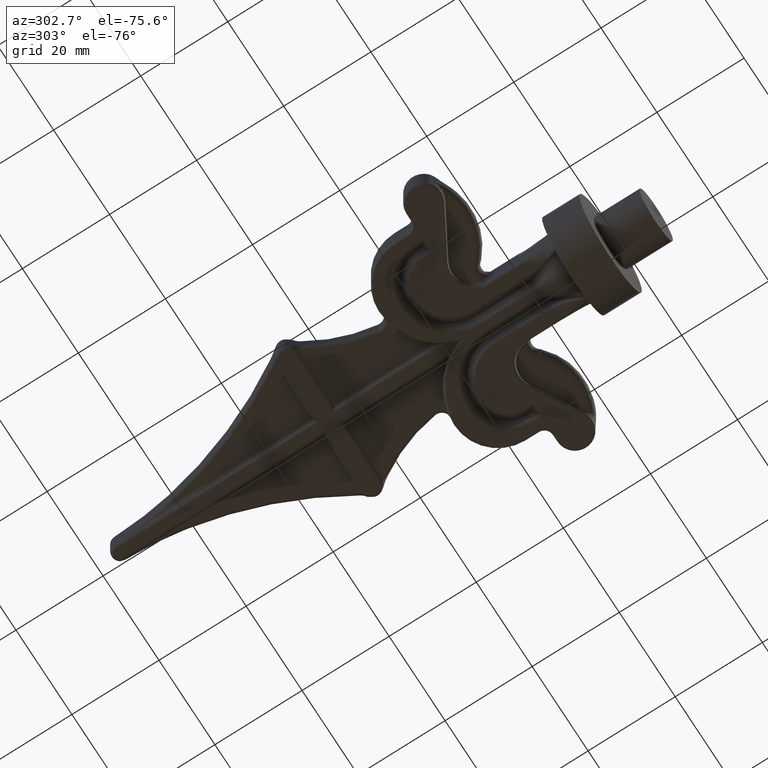
[diagram: clean part render]
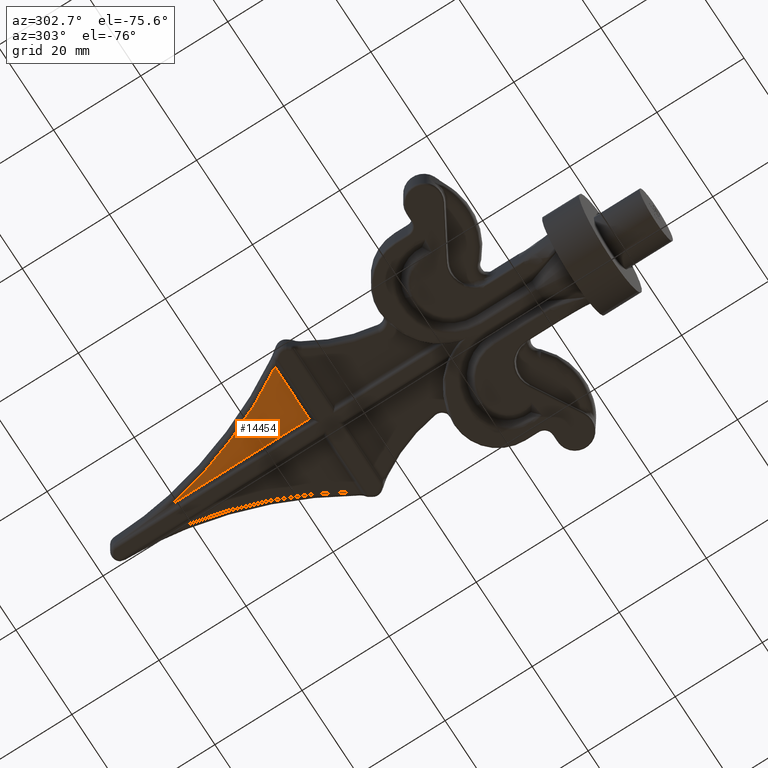
[diagram: same view with one face highlighted and labeled with its STEP entity id]
A machine part, auxiliary view. The second image highlights one B-rep face of the part: STEP entity #14454.
In plain terms, the highlighted planar face has unit normal (-0, 0, -1).
Its self-contained STEP definition (entity closure, byte-faithful):
#82 = DIRECTION ( 'NONE',  ( 0.000000000000000000, 0.000000000000000000, 1.000000000000000000 ) ) ;
#1395 = VECTOR ( 'NONE', #14322, 1000.000000000000000 ) ;
#1559 = CARTESIAN_POINT ( 'NONE',  ( -14.78207323130878059, 51.04541091754501991, -2.500000000000000000 ) ) ;
#1961 = CIRCLE ( 'NONE', #5753, 90.51719354643033455 ) ;
#2471 = ORIENTED_EDGE ( 'NONE', *, *, #8294, .T. ) ;
#2562 = VECTOR ( 'NONE', #13433, 1000.000000000000000 ) ;
#2662 = CARTESIAN_POINT ( 'NONE',  ( -2.500000000000000444, 82.44229001420114855, -2.500000000000000000 ) ) ;
#3803 = EDGE_CURVE ( 'NONE', #4019, #14093, #17592, .T. ) ;
#4019 = VERTEX_POINT ( 'NONE', #2662 ) ;
#4858 = AXIS2_PLACEMENT_3D ( 'NONE', #14206, #9587, #17109 ) ;
#5721 = ORIENTED_EDGE ( 'NONE', *, *, #18850, .T. ) ;
#5753 = AXIS2_PLACEMENT_3D ( 'NONE', #5950, #82, #12068 ) ;
#5950 = CARTESIAN_POINT ( 'NONE',  ( -91.46321172284538648, 99.14286747362201879, -2.500000000000000000 ) ) ;
#6656 = CARTESIAN_POINT ( 'NONE',  ( -2.500000000000000444, 51.04541091754501991, -2.500000000000000000 ) ) ;
#7115 = ORIENTED_EDGE ( 'NONE', *, *, #3803, .T. ) ;
#7637 = EDGE_LOOP ( 'NONE', ( #2471, #5721, #7115 ) ) ;
#8294 = EDGE_CURVE ( 'NONE', #14093, #10861, #18318, .T. ) ;
#9587 = DIRECTION ( 'NONE',  ( -0.000000000000000000, 0.000000000000000000, -1.000000000000000000 ) ) ;
#10861 = VERTEX_POINT ( 'NONE', #1559 ) ;
#11085 = PLANE ( 'NONE',  #4858 ) ;
#12068 = DIRECTION ( 'NONE',  ( -1.000000000000000000, -3.526281660688099581E-15, 0.000000000000000000 ) ) ;
#13433 = DIRECTION ( 'NONE',  ( 4.586549547418313381E-18, -1.000000000000000000, 0.000000000000000000 ) ) ;
#14093 = VERTEX_POINT ( 'NONE', #6656 ) ;
#14206 = CARTESIAN_POINT ( 'NONE',  ( -15.50000000000000711, 48.10379244903953122, -2.500000000000000000 ) ) ;
#14322 = DIRECTION ( 'NONE',  ( -1.000000000000000000, 0.000000000000000000, 0.000000000000000000 ) ) ;
#14383 = CARTESIAN_POINT ( 'NONE',  ( -16.61157379719141503, 51.04541091754501991, -2.500000000000000000 ) ) ;
#14454 = ADVANCED_FACE ( 'NONE', ( #15353 ), #11085, .T. ) ;
#15353 = FACE_OUTER_BOUND ( 'NONE', #7637, .T. ) ;
#16552 = CARTESIAN_POINT ( 'NONE',  ( -2.500000000000000444, 50.04541091754501991, -2.500000000000000000 ) ) ;
#17109 = DIRECTION ( 'NONE',  ( -1.000000000000000000, 0.000000000000000000, 0.000000000000000000 ) ) ;
#17592 = LINE ( 'NONE', #16552, #2562 ) ;
#18318 = LINE ( 'NONE', #14383, #1395 ) ;
#18850 = EDGE_CURVE ( 'NONE', #10861, #4019, #1961, .T. ) ;